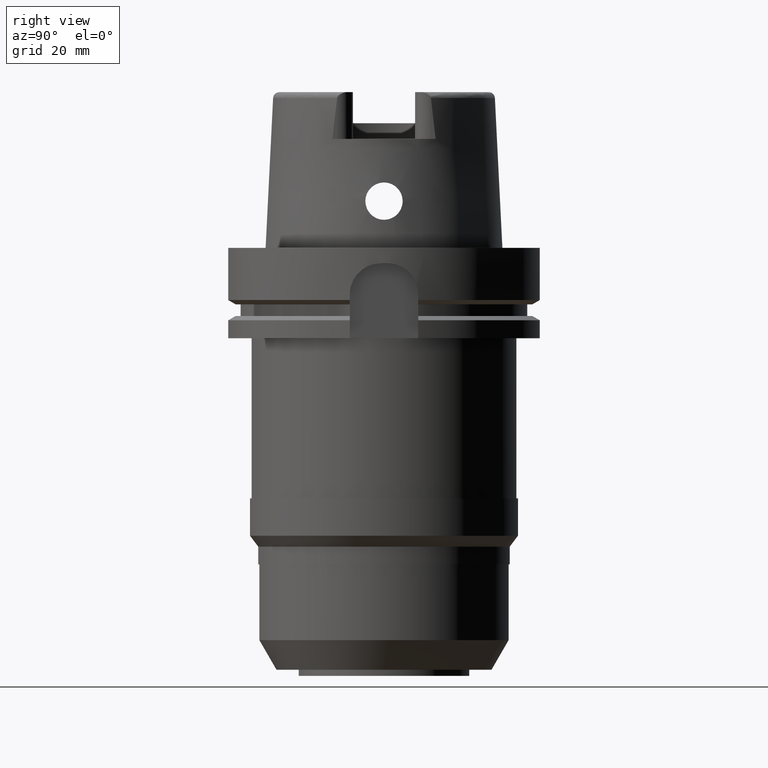
[diagram: clean part render]
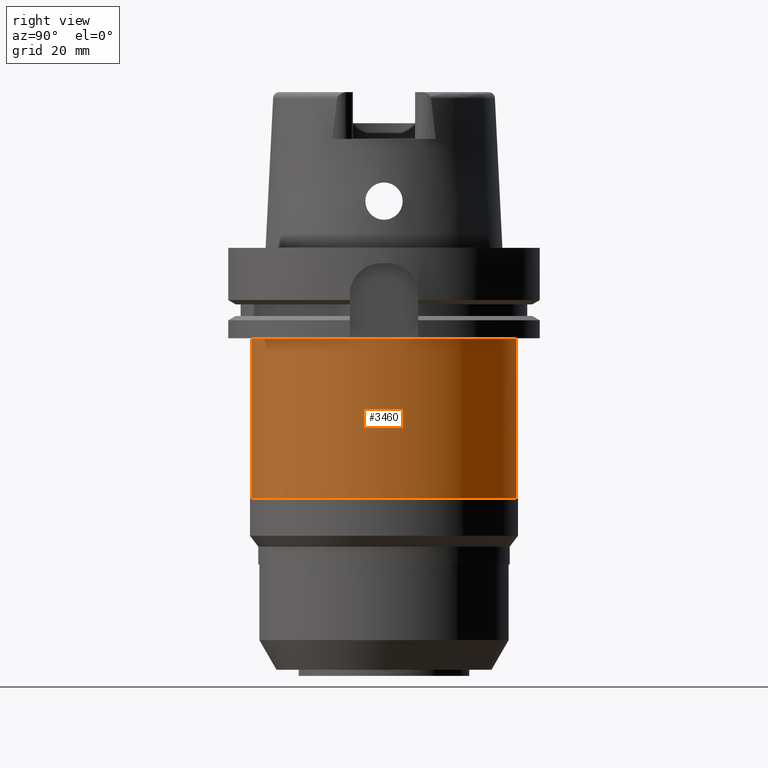
[diagram: same view with one face highlighted and labeled with its STEP entity id]
A machine part, right view. The second image highlights one B-rep face of the part: STEP entity #3460.
In plain terms, the highlighted cylindrical surface (partial cylindrical patch) has radius 42.5 mm, axis along (0, 0, 1).
Its self-contained STEP definition (entity closure, byte-faithful):
#1150=CARTESIAN_POINT('',(0.E0,0.E0,-8.04E1));
#1151=DIRECTION('',(0.E0,0.E0,1.E0));
#1152=DIRECTION('',(0.E0,-1.E0,0.E0));
#1153=AXIS2_PLACEMENT_3D('',#1150,#1151,#1152);
#1166=DIRECTION('',(0.E0,0.E0,-1.E0));
#1167=VECTOR('',#1166,5.14E1);
#1168=CARTESIAN_POINT('',(0.E0,4.25E1,-2.9E1));
#1169=LINE('',#1168,#1167);
#1173=DIRECTION('',(0.E0,0.E0,-1.E0));
#1174=VECTOR('',#1173,5.14E1);
#1175=CARTESIAN_POINT('',(0.E0,-4.25E1,-2.9E1));
#1176=LINE('',#1175,#1174);
#1249=CARTESIAN_POINT('',(0.E0,0.E0,-2.9E1));
#1250=DIRECTION('',(0.E0,0.E0,-1.E0));
#1251=DIRECTION('',(0.E0,1.E0,0.E0));
#1252=AXIS2_PLACEMENT_3D('',#1249,#1250,#1251);
#2443=CARTESIAN_POINT('',(0.E0,-4.25E1,-8.04E1));
#2444=CARTESIAN_POINT('',(0.E0,4.25E1,-8.04E1));
#2445=VERTEX_POINT('',#2443);
#2446=VERTEX_POINT('',#2444);
#2447=CARTESIAN_POINT('',(0.E0,4.25E1,-2.9E1));
#2448=VERTEX_POINT('',#2447);
#2449=CARTESIAN_POINT('',(0.E0,-4.25E1,-2.9E1));
#2450=VERTEX_POINT('',#2449);
#3446=CARTESIAN_POINT('',(0.E0,0.E0,-1.4677E2));
#3447=DIRECTION('',(0.E0,0.E0,1.E0));
#3448=DIRECTION('',(0.E0,1.E0,0.E0));
#3449=AXIS2_PLACEMENT_3D('',#3446,#3447,#3448);
#3450=CYLINDRICAL_SURFACE('',#3449,4.25E1);
#3452=ORIENTED_EDGE('',*,*,#3451,.T.);
#3453=ORIENTED_EDGE('',*,*,#3439,.F.);
#3455=ORIENTED_EDGE('',*,*,#3454,.F.);
#3457=ORIENTED_EDGE('',*,*,#3456,.F.);
#3458=EDGE_LOOP('',(#3452,#3453,#3455,#3457));
#3459=FACE_OUTER_BOUND('',#3458,.F.);
#1154=CIRCLE('',#1153,4.25E1);
#1253=CIRCLE('',#1252,4.25E1);
#3439=EDGE_CURVE('',#2445,#2446,#1154,.T.);
#3451=EDGE_CURVE('',#2448,#2446,#1169,.T.);
#3454=EDGE_CURVE('',#2450,#2445,#1176,.T.);
#3456=EDGE_CURVE('',#2448,#2450,#1253,.T.);
#3460=ADVANCED_FACE('',(#3459),#3450,.T.);